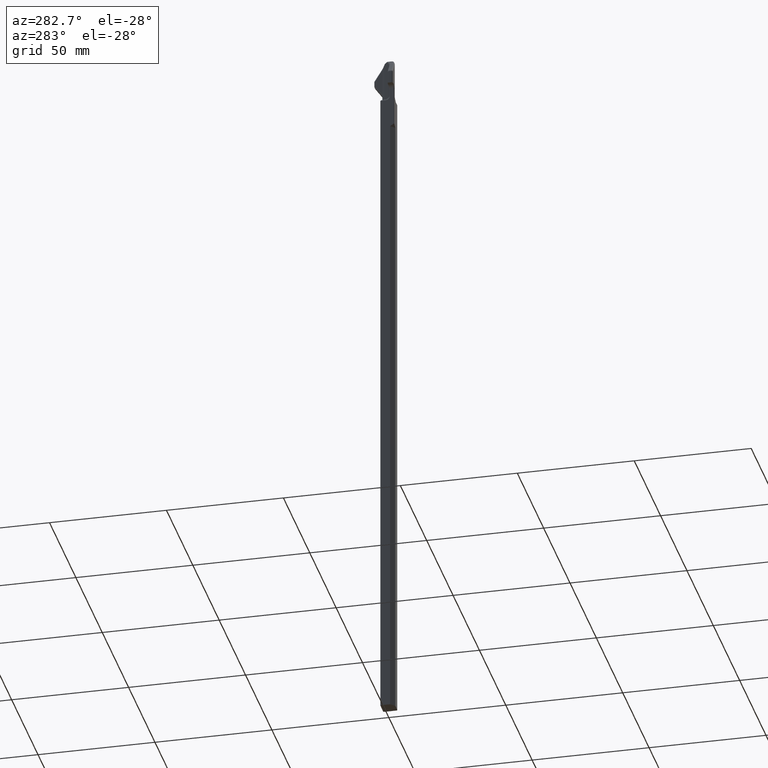
[diagram: clean part render]
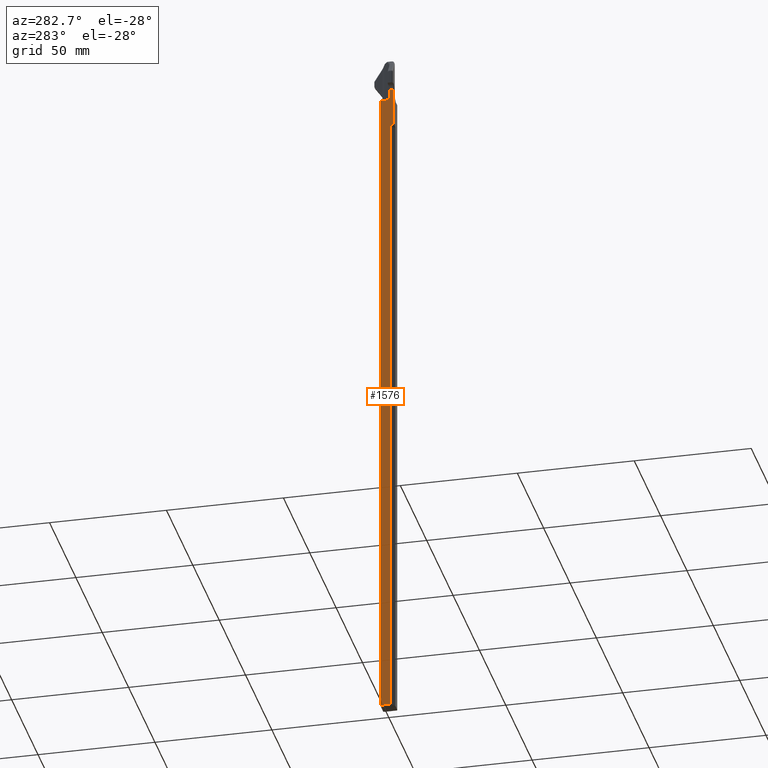
[diagram: same view with one face highlighted and labeled with its STEP entity id]
A machine part, auxiliary view. The second image highlights one B-rep face of the part: STEP entity #1576.
In plain terms, the highlighted planar face has unit normal (-1, 0, 0).
Its self-contained STEP definition (entity closure, byte-faithful):
#189=DIRECTION('',(0.E0,0.E0,-1.E0));
#190=VECTOR('',#189,1.075E1);
#191=CARTESIAN_POINT('',(-1.185E-1,-4.75E-2,9.9E-1));
#192=LINE('',#191,#190);
#193=DIRECTION('',(1.255377747357E-8,-3.228178943019E-9,1.E0));
#194=VECTOR('',#193,1.124000203255E1);
#195=CARTESIAN_POINT('',(-1.185E-1,1.035E-1,-9.76E0));
#196=LINE('',#195,#194);
#197=DIRECTION('',(2.872669151236E-6,9.999999995148E-1,3.101788097930E-5));
#198=VECTOR('',#197,6.552835497919E-2);
#199=CARTESIAN_POINT('',(-1.185000471368E-1,3.797160876787E-2,1.48E0));
#200=LINE('',#199,#198);
#201=CARTESIAN_POINT('',(-1.185000242937E-1,1.001828996806E-2,
1.482848633789E0));
#202=CARTESIAN_POINT('',(-1.184999295883E-1,1.452538697010E-2,
1.481910728457E0));
#203=CARTESIAN_POINT('',(-1.185000405914E-1,2.368943431101E-2,
1.480492668072E0));
#204=CARTESIAN_POINT('',(-1.184999892288E-1,3.316015056678E-2,
1.480000083717E0));
#205=CARTESIAN_POINT('',(-1.185000471368E-1,3.797160876787E-2,1.48E0));
#207=CARTESIAN_POINT('',(-1.184998226723E-1,-4.591010957998E-2,
1.549999999978E0));
#208=CARTESIAN_POINT('',(-1.185001528018E-1,-4.591145471427E-2,
1.544725386369E0));
#209=CARTESIAN_POINT('',(-1.184999290845E-1,-4.469425431758E-2,
1.534930705395E0));
#210=CARTESIAN_POINT('',(-1.185000190017E-1,-4.048194244710E-2,
1.522498040712E0));
#211=CARTESIAN_POINT('',(-1.184999949089E-1,-3.479361364220E-2,
1.512279865315E0));
#212=CARTESIAN_POINT('',(-1.185000013627E-1,-2.829342150080E-2,
1.504066435814E0));
#213=CARTESIAN_POINT('',(-1.184999996402E-1,-2.144533219547E-2,
1.497599450898E0));
#214=CARTESIAN_POINT('',(-1.185000000764E-1,-1.456013297061E-2,
1.492607685540E0));
#215=CARTESIAN_POINT('',(-1.185000000541E-1,-7.848540401129E-3,
1.488842074689E0));
#216=CARTESIAN_POINT('',(-1.184999997072E-1,-1.453004102932E-3,
1.486077483481E0));
#217=CARTESIAN_POINT('',(-1.185000011170E-1,4.561704452117E-3,
1.484107443739E0));
#218=CARTESIAN_POINT('',(-1.184999975888E-1,8.253714558149E-3,
1.483215948872E0));
#219=CARTESIAN_POINT('',(-1.185000242937E-1,1.001828996806E-2,
1.482848633789E0));
#221=DIRECTION('',(1.477730580335E-6,7.968521674356E-11,-9.999999999989E-1));
#222=VECTOR('',#221,1.200000000223E-1);
#223=CARTESIAN_POINT('',(-1.185E-1,-4.591010958954E-2,1.67E0));
#224=LINE('',#223,#222);
#225=DIRECTION('',(0.E0,-1.E0,0.E0));
#226=VECTOR('',#225,5.758989041145E-2);
#227=CARTESIAN_POINT('',(-1.185E-1,-4.591010958954E-2,1.67E0));
#228=LINE('',#227,#226);
#229=DIRECTION('',(0.E0,-1.544841686870E-12,1.E0));
#230=VECTOR('',#229,6.404020202536E-1);
#231=CARTESIAN_POINT('',(-1.185E-1,-1.035E-1,1.029597979746E0));
#232=LINE('',#231,#230);
#233=DIRECTION('',(0.E0,8.164965809277E-1,-5.773502691896E-1));
#234=VECTOR('',#233,6.858571279793E-2);
#235=CARTESIAN_POINT('',(-1.185E-1,-1.035E-1,1.029597979746E0));
#236=LINE('',#235,#234);
#250=DIRECTION('',(0.E0,1.E0,0.E0));
#251=VECTOR('',#250,1.51E-1);
#252=CARTESIAN_POINT('',(-1.185E-1,-4.75E-2,-9.76E0));
#253=LINE('',#252,#251);
#1194=VERTEX_POINT('',#207);
#1195=VERTEX_POINT('',#219);
#1200=CARTESIAN_POINT('',(-1.185000471368E-1,3.797160876787E-2,1.48E0));
#1201=CARTESIAN_POINT('',(-1.184998588955E-1,1.034999637153E-1,
1.480002032551E0));
#1202=VERTEX_POINT('',#1200);
#1203=VERTEX_POINT('',#1201);
#1214=CARTESIAN_POINT('',(-1.185E-1,-1.035E-1,1.67E0));
#1216=VERTEX_POINT('',#1214);
#1222=CARTESIAN_POINT('',(-1.185E-1,-4.591010958954E-2,1.67E0));
#1223=VERTEX_POINT('',#1222);
#1232=CARTESIAN_POINT('',(-1.185E-1,-1.035E-1,1.029597979746E0));
#1233=VERTEX_POINT('',#1232);
#1350=CARTESIAN_POINT('',(-1.185E-1,-4.75E-2,9.9E-1));
#1352=VERTEX_POINT('',#1350);
#1353=CARTESIAN_POINT('',(-1.185E-1,1.035E-1,-9.76E0));
#1355=VERTEX_POINT('',#1353);
#1367=CARTESIAN_POINT('',(-1.185E-1,-4.75E-2,-9.76E0));
#1368=VERTEX_POINT('',#1367);
#1550=CARTESIAN_POINT('',(-1.185E-1,1.185E-1,-1.5E0));
#1551=DIRECTION('',(-1.E0,0.E0,0.E0));
#1552=DIRECTION('',(0.E0,-1.E0,0.E0));
#1553=AXIS2_PLACEMENT_3D('',#1550,#1551,#1552);
#1554=PLANE('',#1553);
#1556=ORIENTED_EDGE('',*,*,#1555,.T.);
#1558=ORIENTED_EDGE('',*,*,#1557,.T.);
#1559=ORIENTED_EDGE('',*,*,#1540,.T.);
#1561=ORIENTED_EDGE('',*,*,#1560,.F.);
#1563=ORIENTED_EDGE('',*,*,#1562,.F.);
#1565=ORIENTED_EDGE('',*,*,#1564,.F.);
#1567=ORIENTED_EDGE('',*,*,#1566,.F.);
#1569=ORIENTED_EDGE('',*,*,#1568,.T.);
#1571=ORIENTED_EDGE('',*,*,#1570,.F.);
#1573=ORIENTED_EDGE('',*,*,#1572,.T.);
#1574=EDGE_LOOP('',(#1556,#1558,#1559,#1561,#1563,#1565,#1567,#1569,#1571,
#1573));
#1575=FACE_OUTER_BOUND('',#1574,.F.);
#1576=ADVANCED_FACE('',(#1575),#1554,.T.);
#206=B_SPLINE_CURVE_WITH_KNOTS('',3,(#201,#202,#203,#204,#205),.UNSPECIFIED.,
.F.,.F.,(4,1,4),(0.E0,5.E-1,1.E0),.UNSPECIFIED.);
#220=B_SPLINE_CURVE_WITH_KNOTS('',3,(#207,#208,#209,#210,#211,#212,#213,#214,
#215,#216,#217,#218,#219),.UNSPECIFIED.,.F.,.F.,(4,1,1,1,1,1,1,1,1,1,4),(0.E0,
1.E-1,2.E-1,3.E-1,4.E-1,5.E-1,6.E-1,7.E-1,8.E-1,9.E-1,1.E0),.UNSPECIFIED.);
#1540=EDGE_CURVE('',#1355,#1203,#196,.T.);
#1555=EDGE_CURVE('',#1352,#1368,#192,.T.);
#1557=EDGE_CURVE('',#1368,#1355,#253,.T.);
#1560=EDGE_CURVE('',#1202,#1203,#200,.T.);
#1562=EDGE_CURVE('',#1195,#1202,#206,.T.);
#1564=EDGE_CURVE('',#1194,#1195,#220,.T.);
#1566=EDGE_CURVE('',#1223,#1194,#224,.T.);
#1568=EDGE_CURVE('',#1223,#1216,#228,.T.);
#1570=EDGE_CURVE('',#1233,#1216,#232,.T.);
#1572=EDGE_CURVE('',#1233,#1352,#236,.T.);